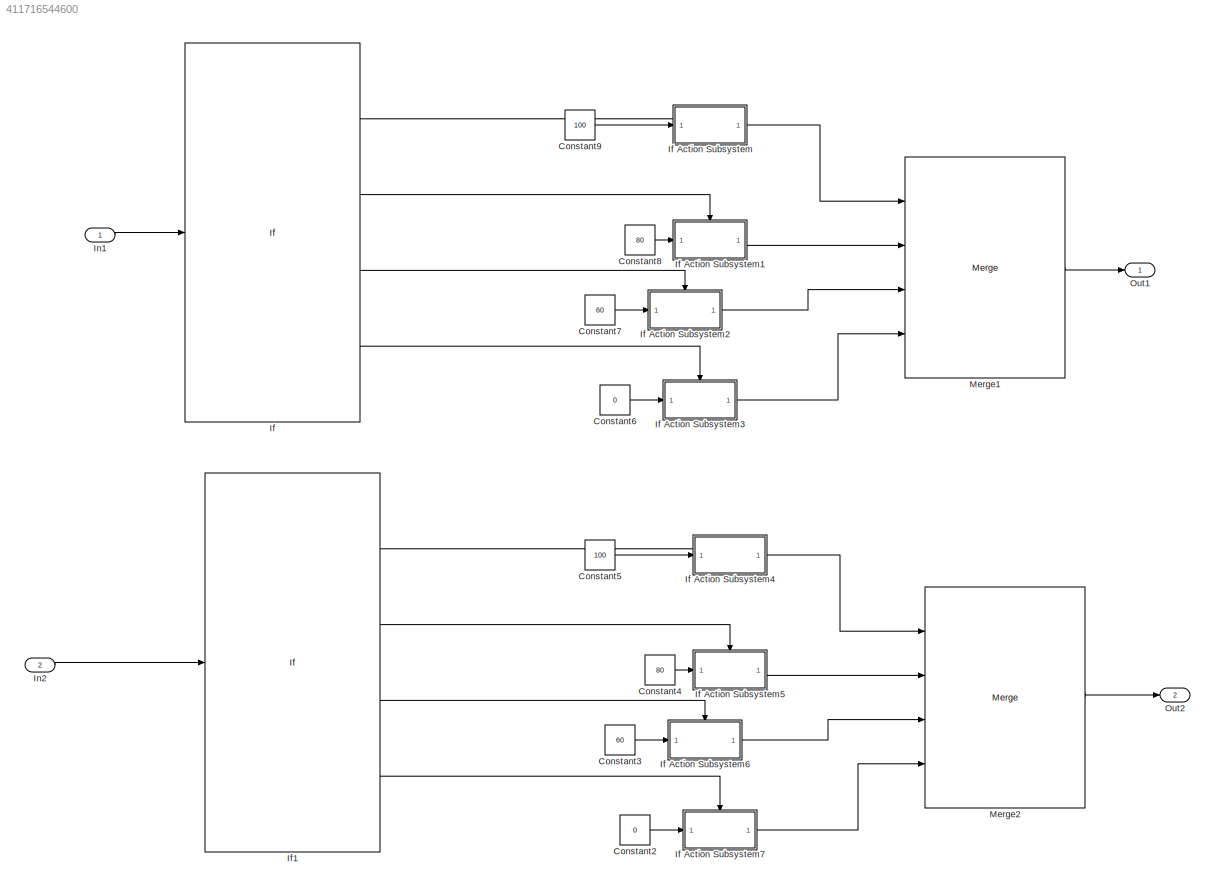
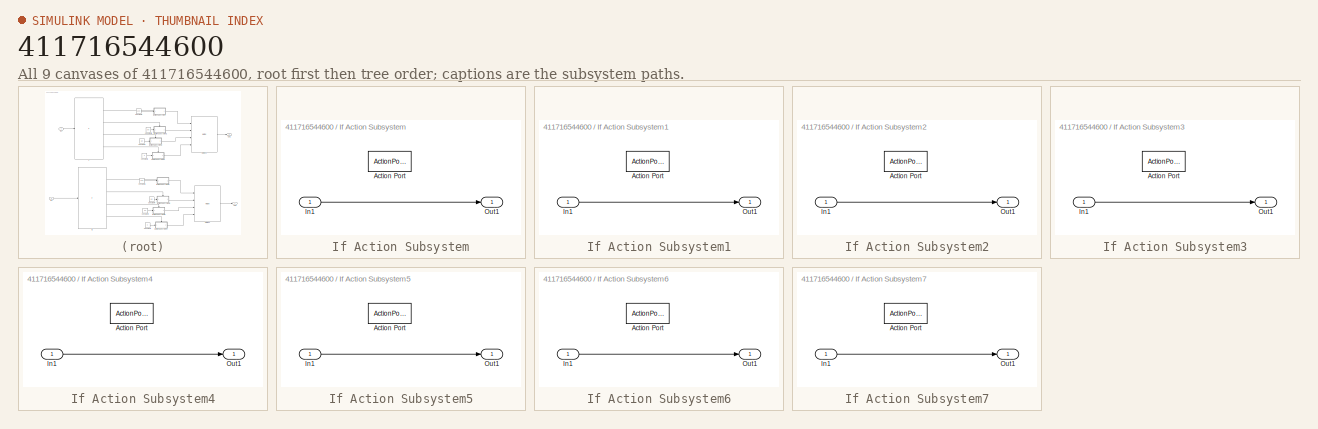
[diagram: thumbnail index - all 9 canvases of the model, root first then tree order]
MODEL slx_411716544600
KIND model
CONFIG AbsTol = auto
CONFIG EnableMultiTasking = off
CONFIG FixedStep = auto
CONFIG MaxStep = auto
CONFIG MinStep = auto
CONFIG RelTol = 1e-3
CONFIG SampleTimeConstraint = Unconstrained
CONFIG Solver = FixedStepDiscrete
CONFIG SolverName = FixedStepDiscrete
CONFIG StartTime = 0.0
CONFIG StopTime = 10.0
BLOCK [Constant] Constant2
  Value = 0
BLOCK [Constant] Constant3
  Value = 60
BLOCK [Constant] Constant4
  Value = 80
BLOCK [Constant] Constant5
  Value = 100
BLOCK [Constant] Constant6
  Value = 0
BLOCK [Constant] Constant7
  Value = 60
BLOCK [Constant] Constant8
  Value = 80
BLOCK [Constant] Constant9
  Value = 100
BLOCK [If] If
  ElseIfExpressions = u1 < 90 & u1 >= 75, u1<75 & u1>=60
  IfExpression = u1 >= 90
  Ports = [1, 4]
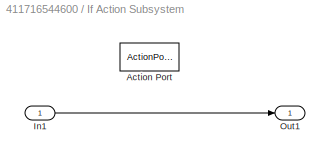
BLOCK [SubSystem] If Action Subsystem
  Ports = [1, 1, 0, 0, 0, 0, 0, 1]
  RequestExecContextInheritance = off
  TreatAsAtomicUnit = on
  Variant = off
BLOCK [ActionPort] If Action Subsystem/Action Port
  ActionType = then
BLOCK [Inport] If Action Subsystem/In1
  IconDisplay = Port number
BLOCK [Outport] If Action Subsystem/Out1
  IconDisplay = Port number
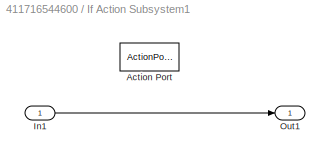
BLOCK [SubSystem] If Action Subsystem1
  Ports = [1, 1, 0, 0, 0, 0, 0, 1]
  RequestExecContextInheritance = off
  TreatAsAtomicUnit = on
  Variant = off
BLOCK [ActionPort] If Action Subsystem1/Action Port
  ActionType = elseif
BLOCK [Inport] If Action Subsystem1/In1
  IconDisplay = Port number
BLOCK [Outport] If Action Subsystem1/Out1
  IconDisplay = Port number
BLOCK [SubSystem] If Action Subsystem2
  Ports = [1, 1, 0, 0, 0, 0, 0, 1]
  RequestExecContextInheritance = off
  TreatAsAtomicUnit = on
  Variant = off
BLOCK [ActionPort] If Action Subsystem2/Action Port
  ActionType = elseif
BLOCK [Inport] If Action Subsystem2/In1
  IconDisplay = Port number
BLOCK [Outport] If Action Subsystem2/Out1
  IconDisplay = Port number
BLOCK [SubSystem] If Action Subsystem3
  Ports = [1, 1, 0, 0, 0, 0, 0, 1]
  RequestExecContextInheritance = off
  TreatAsAtomicUnit = on
  Variant = off
BLOCK [ActionPort] If Action Subsystem3/Action Port
  ActionType = else
BLOCK [Inport] If Action Subsystem3/In1
  IconDisplay = Port number
BLOCK [Outport] If Action Subsystem3/Out1
  IconDisplay = Port number
BLOCK [SubSystem] If Action Subsystem4
  Ports = [1, 1, 0, 0, 0, 0, 0, 1]
  RequestExecContextInheritance = off
  TreatAsAtomicUnit = on
  Variant = off
BLOCK [ActionPort] If Action Subsystem4/Action Port
  ActionType = then
BLOCK [Inport] If Action Subsystem4/In1
  IconDisplay = Port number
BLOCK [Outport] If Action Subsystem4/Out1
  IconDisplay = Port number
BLOCK [SubSystem] If Action Subsystem5
  Ports = [1, 1, 0, 0, 0, 0, 0, 1]
  RequestExecContextInheritance = off
  TreatAsAtomicUnit = on
  Variant = off
BLOCK [ActionPort] If Action Subsystem5/Action Port
  ActionType = elseif
BLOCK [Inport] If Action Subsystem5/In1
  IconDisplay = Port number
BLOCK [Outport] If Action Subsystem5/Out1
  IconDisplay = Port number
BLOCK [SubSystem] If Action Subsystem6
  Ports = [1, 1, 0, 0, 0, 0, 0, 1]
  RequestExecContextInheritance = off
  TreatAsAtomicUnit = on
  Variant = off
BLOCK [ActionPort] If Action Subsystem6/Action Port
  ActionType = elseif
BLOCK [Inport] If Action Subsystem6/In1
  IconDisplay = Port number
BLOCK [Outport] If Action Subsystem6/Out1
  IconDisplay = Port number
BLOCK [SubSystem] If Action Subsystem7
  Ports = [1, 1, 0, 0, 0, 0, 0, 1]
  RequestExecContextInheritance = off
  TreatAsAtomicUnit = on
  Variant = off
BLOCK [ActionPort] If Action Subsystem7/Action Port
  ActionType = else
BLOCK [Inport] If Action Subsystem7/In1
  IconDisplay = Port number
BLOCK [Outport] If Action Subsystem7/Out1
  IconDisplay = Port number
BLOCK [If] If1
  ElseIfExpressions = u1 < 90 & u1 >= 75, u1<75 & u1>=60
  IfExpression = u1 >= 90
  Ports = [1, 4]
BLOCK [Inport] In1
  IconDisplay = Port number
BLOCK [Inport] In2
  IconDisplay = Port number
  Port = 2
BLOCK [Merge] Merge1
  Inputs = 4
  Ports = [4, 1]
BLOCK [Merge] Merge2
  Inputs = 4
  Ports = [4, 1]
BLOCK [Outport] Out1
  IconDisplay = Port number
BLOCK [Outport] Out2
  IconDisplay = Port number
  Port = 2
LINE Constant2:1 -> If Action Subsystem7:1
LINE Constant3:1 -> If Action Subsystem6:1
LINE Constant4:1 -> If Action Subsystem5:1
LINE Constant5:1 -> If Action Subsystem4:1
LINE Constant6:1 -> If Action Subsystem3:1
LINE Constant7:1 -> If Action Subsystem2:1
LINE Constant8:1 -> If Action Subsystem1:1
LINE Constant9:1 -> If Action Subsystem:1
LINE If Action Subsystem/In1:1 -> If Action Subsystem/Out1:1
LINE If Action Subsystem1/In1:1 -> If Action Subsystem1/Out1:1
LINE If Action Subsystem1:1 -> Merge1:2
LINE If Action Subsystem2/In1:1 -> If Action Subsystem2/Out1:1
LINE If Action Subsystem2:1 -> Merge1:3
LINE If Action Subsystem3/In1:1 -> If Action Subsystem3/Out1:1
LINE If Action Subsystem3:1 -> Merge1:4
LINE If Action Subsystem4/In1:1 -> If Action Subsystem4/Out1:1
LINE If Action Subsystem4:1 -> Merge2:1
LINE If Action Subsystem5/In1:1 -> If Action Subsystem5/Out1:1
LINE If Action Subsystem5:1 -> Merge2:2
LINE If Action Subsystem6/In1:1 -> If Action Subsystem6/Out1:1
LINE If Action Subsystem6:1 -> Merge2:3
LINE If Action Subsystem7/In1:1 -> If Action Subsystem7/Out1:1
LINE If Action Subsystem7:1 -> Merge2:4
LINE If Action Subsystem:1 -> Merge1:1
LINE If1:1 -> If Action Subsystem4:ifaction
LINE If1:2 -> If Action Subsystem5:ifaction
LINE If1:3 -> If Action Subsystem6:ifaction
LINE If1:4 -> If Action Subsystem7:ifaction
LINE If:1 -> If Action Subsystem:ifaction
LINE If:2 -> If Action Subsystem1:ifaction
LINE If:3 -> If Action Subsystem2:ifaction
LINE If:4 -> If Action Subsystem3:ifaction
LINE In1:1 -> If:1
LINE In2:1 -> If1:1
LINE Merge1:1 -> Out1:1
LINE Merge2:1 -> Out2:1
